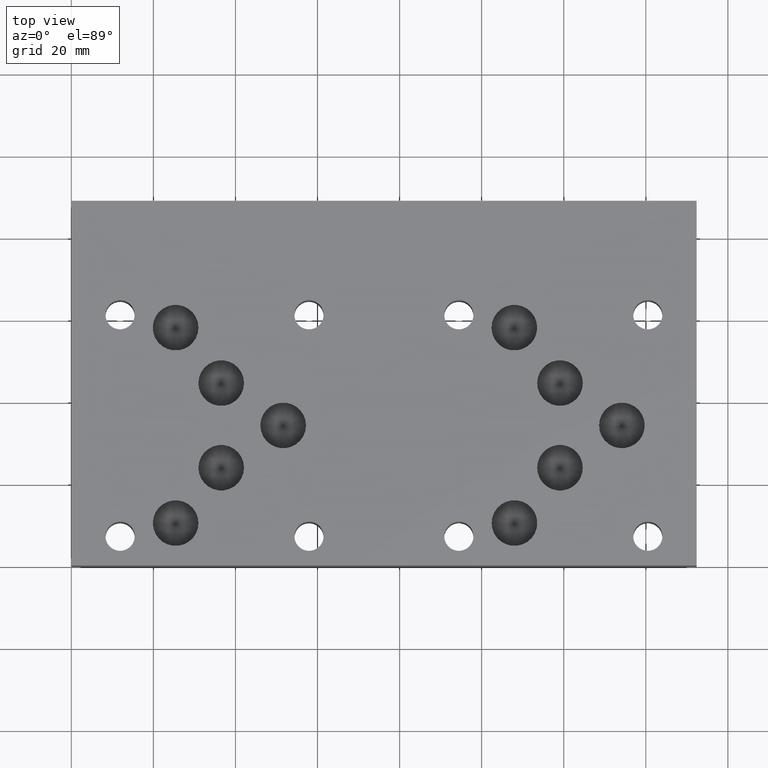
[diagram: clean part render]
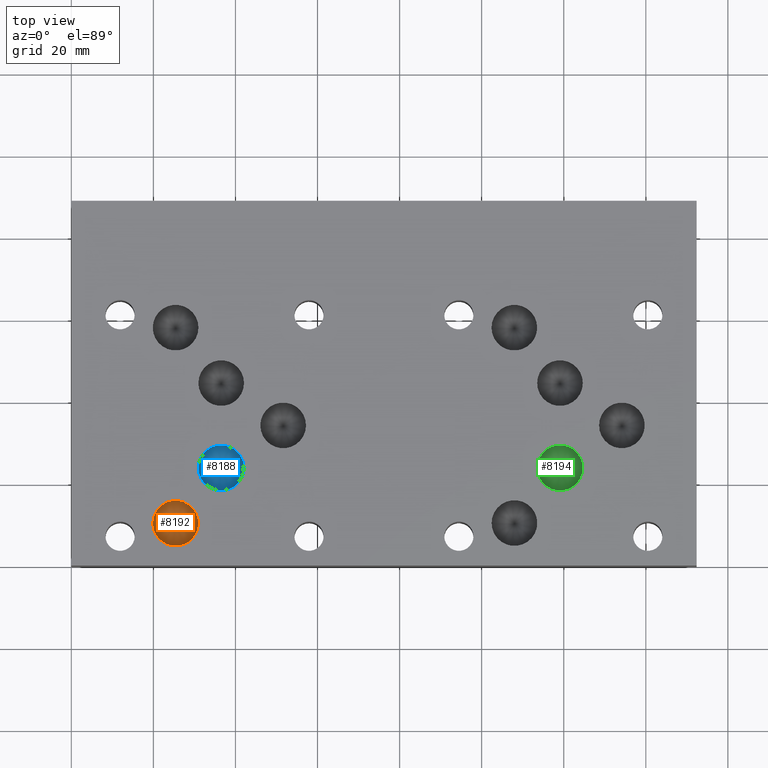
[diagram: same view with three faces highlighted in distinct colors, each labeled with its STEP entity id]
A machine part, top view with three faces highlighted in distinct colors.
Their STEP definitions:

[orange] entity #8192 — the highlighted conical surface has half-angle 60 deg.
#138=CIRCLE('',#8611,5.55625);
#172=CONICAL_SURFACE('',#8610,2.778125,1.0471975511966);
#910=FACE_OUTER_BOUND('',#1392,.T.);
#1392=EDGE_LOOP('',(#7258,#7259,#7260));
#2212=LINE('',#14030,#3014);
#3014=VECTOR('',#10194,2.778125);
#3977=VERTEX_POINT('',#14027);
#3978=VERTEX_POINT('',#14029);
#5082=EDGE_CURVE('',#3977,#3977,#138,.T.);
#5083=EDGE_CURVE('',#3977,#3978,#2212,.T.);
#7258=ORIENTED_EDGE('',*,*,#5082,.T.);
#7259=ORIENTED_EDGE('',*,*,#5083,.T.);
#7260=ORIENTED_EDGE('',*,*,#5083,.F.);
#8192=ADVANCED_FACE('',(#910),#172,.F.);
#8610=AXIS2_PLACEMENT_3D('',#14026,#10190,#10191);
#8611=AXIS2_PLACEMENT_3D('',#14028,#10192,#10193);
#10190=DIRECTION('center_axis',(0.,0.,1.));
#10191=DIRECTION('ref_axis',(1.,0.,0.));
#10192=DIRECTION('center_axis',(0.,0.,1.));
#10193=DIRECTION('ref_axis',(1.,0.,0.));
#10194=DIRECTION('',(0.866025403784439,1.06057523872491E-16,-0.5));
#14026=CARTESIAN_POINT('Origin',(25.40762,10.2997,20.5881487834076));
#14027=CARTESIAN_POINT('',(19.85137,10.2997,22.1921));
#14028=CARTESIAN_POINT('Origin',(25.40762,10.2997,22.1921));
#14029=CARTESIAN_POINT('',(25.40762,10.2997,18.9841975668151));
#14030=CARTESIAN_POINT('',(22.629495,10.2997,20.5881487834076));

[blue] entity #8188 — the highlighted conical surface has half-angle 60 deg.
#134=CIRCLE('',#8603,5.55625);
#170=CONICAL_SURFACE('',#8602,2.778125,1.0471975511966);
#906=FACE_OUTER_BOUND('',#1388,.T.);
#1388=EDGE_LOOP('',(#7244,#7245,#7246));
#2208=LINE('',#14012,#3010);
#3010=VECTOR('',#10174,2.778125);
#3971=VERTEX_POINT('',#14009);
#3972=VERTEX_POINT('',#14011);
#5074=EDGE_CURVE('',#3971,#3971,#134,.T.);
#5075=EDGE_CURVE('',#3971,#3972,#2208,.T.);
#7244=ORIENTED_EDGE('',*,*,#5074,.T.);
#7245=ORIENTED_EDGE('',*,*,#5075,.T.);
#7246=ORIENTED_EDGE('',*,*,#5075,.F.);
#8188=ADVANCED_FACE('',(#906),#170,.F.);
#8602=AXIS2_PLACEMENT_3D('',#14008,#10170,#10171);
#8603=AXIS2_PLACEMENT_3D('',#14010,#10172,#10173);
#10170=DIRECTION('center_axis',(0.,0.,1.));
#10171=DIRECTION('ref_axis',(1.,0.,0.));
#10172=DIRECTION('center_axis',(0.,0.,1.));
#10173=DIRECTION('ref_axis',(1.,0.,0.));
#10174=DIRECTION('',(0.866025403784439,1.06057523872491E-16,-0.5));
#14008=CARTESIAN_POINT('Origin',(36.51758,23.79472,20.5881487834076));
#14009=CARTESIAN_POINT('',(30.96133,23.79472,22.1921));
#14010=CARTESIAN_POINT('Origin',(36.51758,23.79472,22.1921));
#14011=CARTESIAN_POINT('',(36.51758,23.79472,18.9841975668151));
#14012=CARTESIAN_POINT('',(33.739455,23.79472,20.5881487834076));

[green] entity #8194 — the highlighted conical surface has half-angle 60 deg.
#140=CIRCLE('',#8615,5.5626);
#173=CONICAL_SURFACE('',#8614,2.7813,1.0471975511966);
#912=FACE_OUTER_BOUND('',#1394,.T.);
#1394=EDGE_LOOP('',(#7265,#7266,#7267));
#2214=LINE('',#14039,#3016);
#3016=VECTOR('',#10204,2.7813);
#3980=VERTEX_POINT('',#14036);
#3981=VERTEX_POINT('',#14038);
#5086=EDGE_CURVE('',#3980,#3980,#140,.T.);
#5087=EDGE_CURVE('',#3980,#3981,#2214,.T.);
#7265=ORIENTED_EDGE('',*,*,#5086,.T.);
#7266=ORIENTED_EDGE('',*,*,#5087,.T.);
#7267=ORIENTED_EDGE('',*,*,#5087,.F.);
#8194=ADVANCED_FACE('',(#912),#173,.F.);
#8614=AXIS2_PLACEMENT_3D('',#14035,#10200,#10201);
#8615=AXIS2_PLACEMENT_3D('',#14037,#10202,#10203);
#10200=DIRECTION('center_axis',(0.,0.,1.));
#10201=DIRECTION('ref_axis',(1.,0.,0.));
#10202=DIRECTION('center_axis',(0.,0.,1.));
#10203=DIRECTION('ref_axis',(1.,0.,0.));
#10204=DIRECTION('',(0.866025403784439,1.06057523872491E-16,-0.5));
#14035=CARTESIAN_POINT('Origin',(119.0752,23.7998,20.5826456963029));
#14036=CARTESIAN_POINT('',(113.5126,23.7998,22.18843));
#14037=CARTESIAN_POINT('Origin',(119.0752,23.7998,22.18843));
#14038=CARTESIAN_POINT('',(119.0752,23.7998,18.9768613926058));
#14039=CARTESIAN_POINT('',(116.2939,23.7998,20.5826456963029));